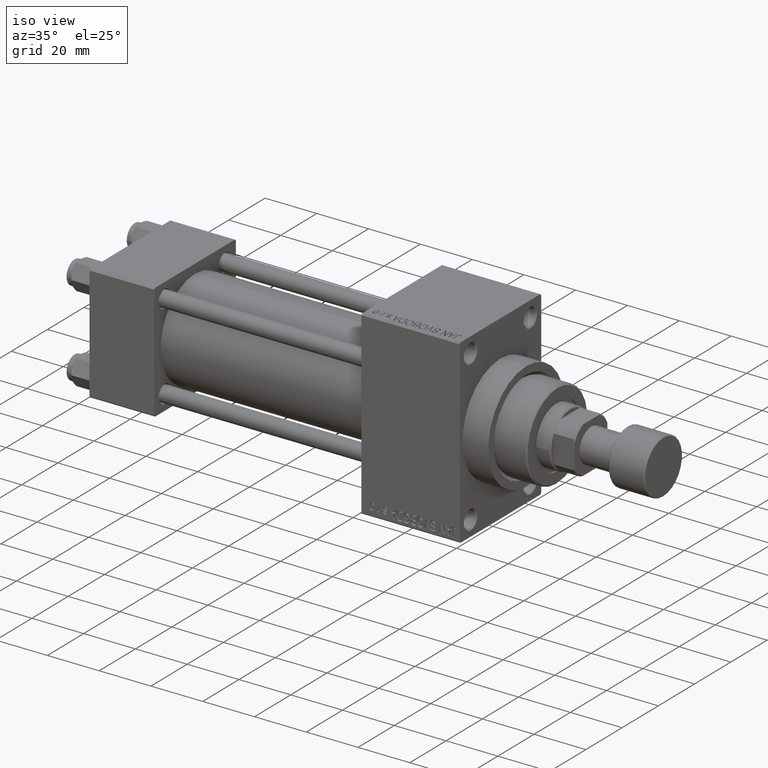
[diagram: clean part render]
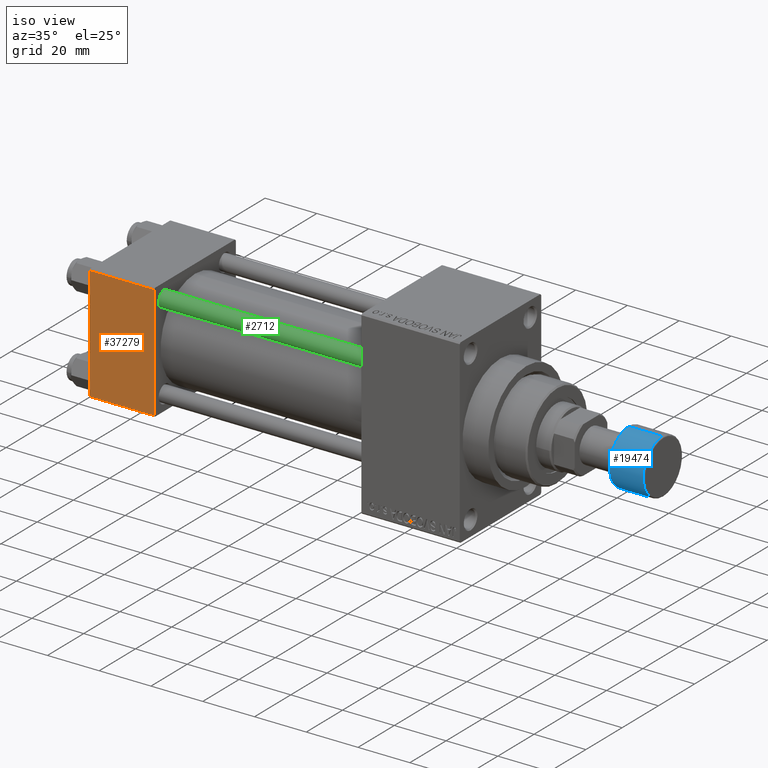
[diagram: same view with three faces highlighted in distinct colors, each labeled with its STEP entity id]
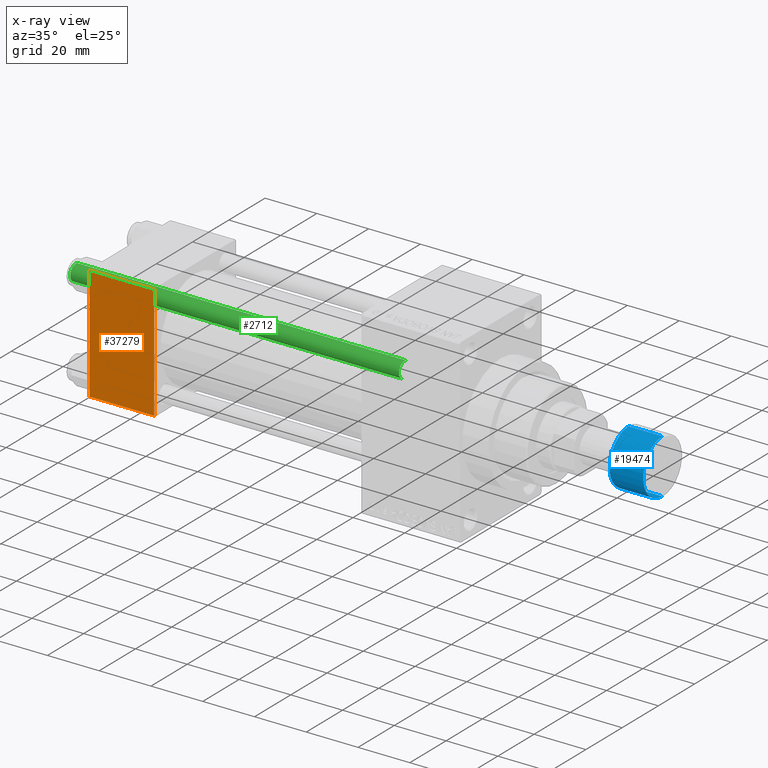
[diagram: x-ray of the same camera — body ghosted, the three highlighted faces saturated]
A machine part, iso view with three faces highlighted in distinct colors.
The next image is the same camera in x-ray (body ghosted, the three faces saturated) — at least one of them is partly hidden behind the body in this view.
Their STEP definitions:

[orange] entity #37279 — the highlighted planar face has unit normal (0, 1, 0).
#935 = ORIENTED_EDGE ( 'NONE', *, *, #8131, .T. ) ;
#1821 = LINE ( 'NONE', #16474, #6023 ) ;
#2279 = VECTOR ( 'NONE', #3259, 1000.000000000000000 ) ;
#3259 = DIRECTION ( 'NONE',  ( 0.000000000000000000, 0.000000000000000000, -1.000000000000000000 ) ) ;
#3818 = ORIENTED_EDGE ( 'NONE', *, *, #7377, .F. ) ;
#6023 = VECTOR ( 'NONE', #42216, 1000.000000000000000 ) ;
#6935 = DIRECTION ( 'NONE',  ( -1.000000000000000000, 0.000000000000000000, 0.000000000000000000 ) ) ;
#7360 = VERTEX_POINT ( 'NONE', #37878 ) ;
#7377 = EDGE_CURVE ( 'NONE', #7360, #34015, #1821, .T. ) ;
#7998 = CARTESIAN_POINT ( 'NONE',  ( 0.000000000000000000, -22.50000000000000000, 22.00000000000000000 ) ) ;
#8131 = EDGE_CURVE ( 'NONE', #7360, #17481, #32444, .T. ) ;
#12870 = CARTESIAN_POINT ( 'NONE',  ( 25.00000000000000000, -22.50000000000000000, -21.99999999999998579 ) ) ;
#13138 = CARTESIAN_POINT ( 'NONE',  ( 25.00000000000000000, -22.50000000000000000, -21.99999999999997158 ) ) ;
#14315 = AXIS2_PLACEMENT_3D ( 'NONE', #23987, #16767, #46113 ) ;
#14556 = LINE ( 'NONE', #42960, #2279 ) ;
#14870 = ORIENTED_EDGE ( 'NONE', *, *, #47121, .T. ) ;
#15834 = EDGE_LOOP ( 'NONE', ( #14870, #32597, #3818, #935 ) ) ;
#16474 = CARTESIAN_POINT ( 'NONE',  ( 25.00000000000000000, -22.50000000000000000, 22.50000000000000000 ) ) ;
#16767 = DIRECTION ( 'NONE',  ( -0.000000000000000000, 1.000000000000000000, 0.000000000000000000 ) ) ;
#17481 = VERTEX_POINT ( 'NONE', #7998 ) ;
#23181 = EDGE_CURVE ( 'NONE', #34348, #34015, #42207, .T. ) ;
#23987 = CARTESIAN_POINT ( 'NONE',  ( 25.00000000000000000, -22.50000000000000000, 22.50000000000000000 ) ) ;
#24461 = FACE_OUTER_BOUND ( 'NONE', #15834, .T. ) ;
#27545 = DIRECTION ( 'NONE',  ( 1.000000000000000000, 0.000000000000000000, 0.000000000000000000 ) ) ;
#27550 = VECTOR ( 'NONE', #6935, 1000.000000000000000 ) ;
#27599 = PLANE ( 'NONE',  #14315 ) ;
#32444 = LINE ( 'NONE', #39652, #27550 ) ;
#32597 = ORIENTED_EDGE ( 'NONE', *, *, #23181, .T. ) ;
#34015 = VERTEX_POINT ( 'NONE', #13138 ) ;
#34348 = VERTEX_POINT ( 'NONE', #46960 ) ;
#37279 = ADVANCED_FACE ( 'NONE', ( #24461 ), #27599, .F. ) ;
#37878 = CARTESIAN_POINT ( 'NONE',  ( 25.00000000000000000, -22.50000000000000000, 22.00000000000000000 ) ) ;
#39652 = CARTESIAN_POINT ( 'NONE',  ( 25.00000000000000000, -22.50000000000000000, 22.00000000000000000 ) ) ;
#40955 = VECTOR ( 'NONE', #27545, 1000.000000000000000 ) ;
#42207 = LINE ( 'NONE', #12870, #40955 ) ;
#42216 = DIRECTION ( 'NONE',  ( 0.000000000000000000, 0.000000000000000000, -1.000000000000000000 ) ) ;
#42960 = CARTESIAN_POINT ( 'NONE',  ( 0.000000000000000000, -22.50000000000000000, 22.50000000000000000 ) ) ;
#46113 = DIRECTION ( 'NONE',  ( 0.000000000000000000, -0.000000000000000000, 1.000000000000000000 ) ) ;
#46960 = CARTESIAN_POINT ( 'NONE',  ( 0.000000000000000000, -22.50000000000000000, -21.99999999999997158 ) ) ;
#47121 = EDGE_CURVE ( 'NONE', #17481, #34348, #14556, .T. ) ;

[blue] entity #19474 — the highlighted cylindrical surface (edge-blend (fillet) strip) has radius 10.5 mm, axis along (1, 0, 0).
#904 = DIRECTION ( 'NONE',  ( 1.000000000000000000, 0.000000000000000000, 0.000000000000000000 ) ) ;
#2557 = CARTESIAN_POINT ( 'NONE',  ( -10.50000000000000000, 1.285879139104720831E-15, -14.00000000000000000 ) ) ;
#5067 = CARTESIAN_POINT ( 'NONE',  ( 0.000000000000000000, 0.000000000000000000, -0.5000000000000004441 ) ) ;
#6063 = CIRCLE ( 'NONE', #32177, 10.50000000000000000 ) ;
#6138 = VERTEX_POINT ( 'NONE', #25099 ) ;
#6170 = LINE ( 'NONE', #2557, #29021 ) ;
#8143 = ORIENTED_EDGE ( 'NONE', *, *, #17171, .T. ) ;
#8683 = DIRECTION ( 'NONE',  ( -0.000000000000000000, -0.000000000000000000, -1.000000000000000000 ) ) ;
#8744 = CIRCLE ( 'NONE', #35639, 10.50000000000000000 ) ;
#8815 = EDGE_CURVE ( 'NONE', #15793, #24765, #6063, .T. ) ;
#15793 = VERTEX_POINT ( 'NONE', #20788 ) ;
#17095 = AXIS2_PLACEMENT_3D ( 'NONE', #20009, #42139, #34462 ) ;
#17171 = EDGE_CURVE ( 'NONE', #6138, #15793, #24533, .T. ) ;
#17846 = CARTESIAN_POINT ( 'NONE',  ( -10.50000000000000000, 1.285879139104720831E-15, -13.50000000000000000 ) ) ;
#18738 = ORIENTED_EDGE ( 'NONE', *, *, #44671, .F. ) ;
#19474 = ADVANCED_FACE ( 'NONE', ( #20252 ), #24577, .T. ) ;
#19494 = DIRECTION ( 'NONE',  ( 1.000000000000000000, 0.000000000000000000, 0.000000000000000000 ) ) ;
#20009 = CARTESIAN_POINT ( 'NONE',  ( 0.000000000000000000, 0.000000000000000000, -14.00000000000000000 ) ) ;
#20252 = FACE_OUTER_BOUND ( 'NONE', #36852, .T. ) ;
#20788 = CARTESIAN_POINT ( 'NONE',  ( 10.50000000000000000, 0.000000000000000000, -0.5000000000000004441 ) ) ;
#23581 = EDGE_CURVE ( 'NONE', #27934, #6138, #8744, .T. ) ;
#24533 = LINE ( 'NONE', #35826, #37705 ) ;
#24577 = CYLINDRICAL_SURFACE ( 'NONE', #17095, 10.50000000000000000 ) ;
#24765 = VERTEX_POINT ( 'NONE', #39778 ) ;
#25099 = CARTESIAN_POINT ( 'NONE',  ( 10.50000000000000000, 0.000000000000000000, -13.50000000000000000 ) ) ;
#27934 = VERTEX_POINT ( 'NONE', #17846 ) ;
#29021 = VECTOR ( 'NONE', #39568, 1000.000000000000000 ) ;
#29719 = DIRECTION ( 'NONE',  ( 0.000000000000000000, 0.000000000000000000, 1.000000000000000000 ) ) ;
#31047 = ORIENTED_EDGE ( 'NONE', *, *, #23581, .T. ) ;
#32177 = AXIS2_PLACEMENT_3D ( 'NONE', #5067, #8683, #19494 ) ;
#33867 = DIRECTION ( 'NONE',  ( 0.000000000000000000, 0.000000000000000000, 1.000000000000000000 ) ) ;
#34462 = DIRECTION ( 'NONE',  ( 1.000000000000000000, 0.000000000000000000, 0.000000000000000000 ) ) ;
#35639 = AXIS2_PLACEMENT_3D ( 'NONE', #41300, #33867, #904 ) ;
#35826 = CARTESIAN_POINT ( 'NONE',  ( 10.50000000000000000, 0.000000000000000000, -14.00000000000000000 ) ) ;
#36852 = EDGE_LOOP ( 'NONE', ( #18738, #31047, #8143, #42333 ) ) ;
#37705 = VECTOR ( 'NONE', #29719, 1000.000000000000000 ) ;
#39568 = DIRECTION ( 'NONE',  ( 0.000000000000000000, 0.000000000000000000, 1.000000000000000000 ) ) ;
#39778 = CARTESIAN_POINT ( 'NONE',  ( -10.50000000000000000, 1.285879139104720831E-15, -0.5000000000000004441 ) ) ;
#41300 = CARTESIAN_POINT ( 'NONE',  ( 0.000000000000000000, 0.000000000000000000, -13.50000000000000000 ) ) ;
#42139 = DIRECTION ( 'NONE',  ( 0.000000000000000000, 0.000000000000000000, 1.000000000000000000 ) ) ;
#42333 = ORIENTED_EDGE ( 'NONE', *, *, #8815, .T. ) ;
#44671 = EDGE_CURVE ( 'NONE', #27934, #24765, #6170, .T. ) ;

[green] entity #2712 — the highlighted cylindrical surface (edge-blend (fillet) strip) has radius 3 mm, axis along (1, 0, 0).
#776 = VERTEX_POINT ( 'NONE', #1657 ) ;
#1657 = CARTESIAN_POINT ( 'NONE',  ( 3.000000000000000444, 3.673940397442060361E-16, 0.5000000000000281997 ) ) ;
#2712 = ADVANCED_FACE ( 'NONE', ( #47608 ), #21642, .T. ) ;
#2991 = ORIENTED_EDGE ( 'NONE', *, *, #41606, .F. ) ;
#4704 = CARTESIAN_POINT ( 'NONE',  ( 0.000000000000000000, 0.000000000000000000, 0.5000000000000281997 ) ) ;
#4863 = ORIENTED_EDGE ( 'NONE', *, *, #30281, .T. ) ;
#6507 = DIRECTION ( 'NONE',  ( 0.000000000000000000, 0.000000000000000000, -1.000000000000000000 ) ) ;
#8028 = CIRCLE ( 'NONE', #47211, 3.000000000000000444 ) ;
#8556 = DIRECTION ( 'NONE',  ( 1.000000000000000000, 0.000000000000000000, 0.000000000000000000 ) ) ;
#9199 = EDGE_CURVE ( 'NONE', #42377, #776, #22562, .T. ) ;
#10026 = VERTEX_POINT ( 'NONE', #38606 ) ;
#16537 = CARTESIAN_POINT ( 'NONE',  ( 3.000000000000000444, 3.673940397442060361E-16, 127.4999999999999716 ) ) ;
#17109 = DIRECTION ( 'NONE',  ( 1.000000000000000000, 0.000000000000000000, 0.000000000000000000 ) ) ;
#20995 = AXIS2_PLACEMENT_3D ( 'NONE', #38758, #6507, #17109 ) ;
#21642 = CYLINDRICAL_SURFACE ( 'NONE', #28877, 3.000000000000000444 ) ;
#21869 = DIRECTION ( 'NONE',  ( -0.000000000000000000, -0.000000000000000000, -1.000000000000000000 ) ) ;
#22029 = EDGE_CURVE ( 'NONE', #35942, #42377, #22492, .T. ) ;
#22492 = CIRCLE ( 'NONE', #20995, 3.000000000000000444 ) ;
#22562 = LINE ( 'NONE', #27143, #45213 ) ;
#24404 = ORIENTED_EDGE ( 'NONE', *, *, #22029, .T. ) ;
#24472 = VECTOR ( 'NONE', #45073, 1000.000000000000000 ) ;
#26382 = CARTESIAN_POINT ( 'NONE',  ( -3.000000000000000444, 0.000000000000000000, 127.4999999999999716 ) ) ;
#27143 = CARTESIAN_POINT ( 'NONE',  ( 3.000000000000000444, 3.673940397442060361E-16, 128.0000000000000000 ) ) ;
#27295 = ORIENTED_EDGE ( 'NONE', *, *, #9199, .T. ) ;
#28877 = AXIS2_PLACEMENT_3D ( 'NONE', #36783, #21869, #36541 ) ;
#30281 = EDGE_CURVE ( 'NONE', #776, #10026, #8028, .T. ) ;
#30762 = DIRECTION ( 'NONE',  ( -0.000000000000000000, -0.000000000000000000, -1.000000000000000000 ) ) ;
#35942 = VERTEX_POINT ( 'NONE', #26382 ) ;
#36541 = DIRECTION ( 'NONE',  ( -1.000000000000000000, 0.000000000000000000, 0.000000000000000000 ) ) ;
#36783 = CARTESIAN_POINT ( 'NONE',  ( 0.000000000000000000, 0.000000000000000000, 128.0000000000000000 ) ) ;
#37405 = DIRECTION ( 'NONE',  ( -0.000000000000000000, -0.000000000000000000, 1.000000000000000000 ) ) ;
#38606 = CARTESIAN_POINT ( 'NONE',  ( -3.000000000000000444, 0.000000000000000000, 0.5000000000000281997 ) ) ;
#38758 = CARTESIAN_POINT ( 'NONE',  ( 0.000000000000000000, 0.000000000000000000, 127.4999999999999716 ) ) ;
#39443 = EDGE_LOOP ( 'NONE', ( #24404, #27295, #4863, #2991 ) ) ;
#41606 = EDGE_CURVE ( 'NONE', #35942, #10026, #41707, .T. ) ;
#41707 = LINE ( 'NONE', #45324, #24472 ) ;
#42377 = VERTEX_POINT ( 'NONE', #16537 ) ;
#45073 = DIRECTION ( 'NONE',  ( -0.000000000000000000, -0.000000000000000000, -1.000000000000000000 ) ) ;
#45213 = VECTOR ( 'NONE', #30762, 1000.000000000000000 ) ;
#45324 = CARTESIAN_POINT ( 'NONE',  ( -3.000000000000000444, 0.000000000000000000, 128.0000000000000000 ) ) ;
#47211 = AXIS2_PLACEMENT_3D ( 'NONE', #4704, #37405, #8556 ) ;
#47608 = FACE_OUTER_BOUND ( 'NONE', #39443, .T. ) ;